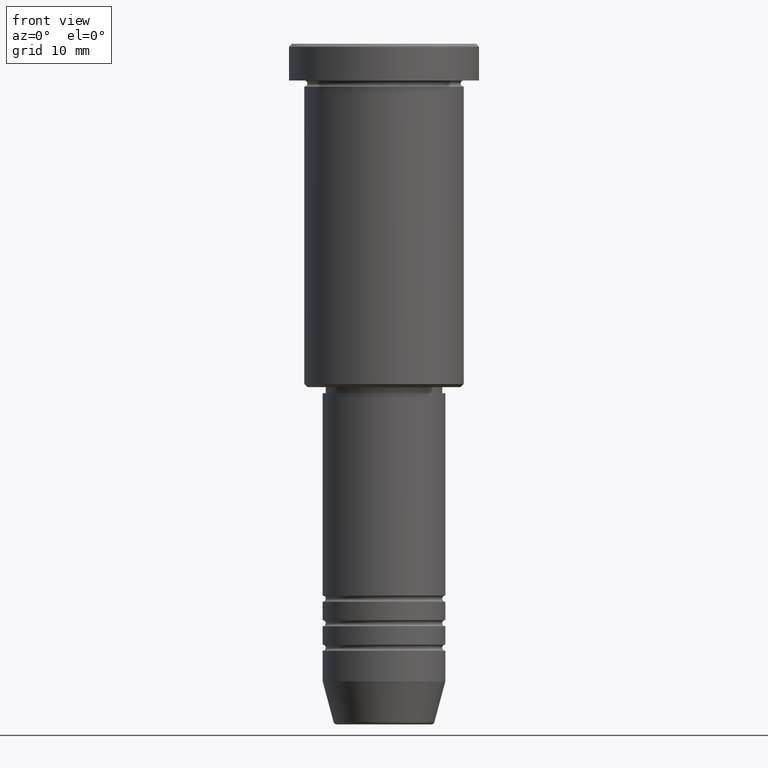
[diagram: clean part render]
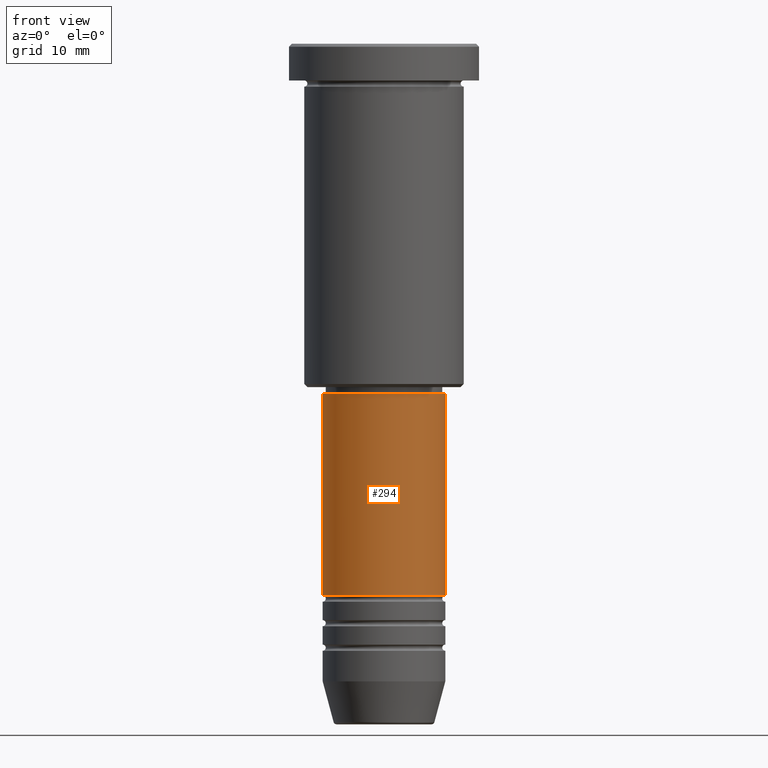
[diagram: same view with one face highlighted and labeled with its STEP entity id]
A machine part, front view. The second image highlights one B-rep face of the part: STEP entity #294.
In plain terms, the highlighted cylindrical surface (partial cylindrical patch) has radius 10 mm, axis along (-0, -0, 1).
Its self-contained STEP definition (entity closure, byte-faithful):
#2 = ORIENTED_EDGE ( 'NONE', *, *, #82, .F. ) ;
#34 = ORIENTED_EDGE ( 'NONE', *, *, #781, .F. ) ;
#56 = VERTEX_POINT ( 'NONE', #1177 ) ;
#82 = EDGE_CURVE ( 'NONE', #56, #852, #632, .T. ) ;
#104 = LINE ( 'NONE', #288, #547 ) ;
#148 = CARTESIAN_POINT ( 'NONE',  ( 0.000000000000000000, 0.000000000000000000, 0.000000000000000000 ) ) ;
#207 = VERTEX_POINT ( 'NONE', #910 ) ;
#224 = DIRECTION ( 'NONE',  ( 1.000000000000000000, 0.000000000000000000, 0.000000000000000000 ) ) ;
#251 = DIRECTION ( 'NONE',  ( -0.000000000000000000, -0.000000000000000000, 1.000000000000000000 ) ) ;
#254 = DIRECTION ( 'NONE',  ( -0.000000000000000000, -0.000000000000000000, 1.000000000000000000 ) ) ;
#258 = CARTESIAN_POINT ( 'NONE',  ( -10.00000000000000178, 1.224646799147353454E-15, -89.99999999999990052 ) ) ;
#269 = CARTESIAN_POINT ( 'NONE',  ( 0.000000000000000000, 0.000000000000000000, -56.99999999999998579 ) ) ;
#284 = CARTESIAN_POINT ( 'NONE',  ( 9.999999999999998224, 0.000000000000000000, -56.99999999999998579 ) ) ;
#288 = CARTESIAN_POINT ( 'NONE',  ( -10.00000000000000000, 1.224646799147353256E-15, 0.000000000000000000 ) ) ;
#294 = ADVANCED_FACE ( 'NONE', ( #1038 ), #1144, .T. ) ;
#318 = EDGE_LOOP ( 'NONE', ( #34, #645, #949, #2 ) ) ;
#343 = EDGE_CURVE ( 'NONE', #207, #852, #1128, .T. ) ;
#419 = CARTESIAN_POINT ( 'NONE',  ( 10.00000000000000000, 0.000000000000000000, 0.000000000000000000 ) ) ;
#507 = VERTEX_POINT ( 'NONE', #258 ) ;
#547 = VECTOR ( 'NONE', #736, 1000.000000000000000 ) ;
#607 = CIRCLE ( 'NONE', #693, 10.00000000000000178 ) ;
#632 = CIRCLE ( 'NONE', #833, 9.999999999999998224 ) ;
#645 = ORIENTED_EDGE ( 'NONE', *, *, #1029, .T. ) ;
#662 = CARTESIAN_POINT ( 'NONE',  ( 0.000000000000000000, 0.000000000000000000, -89.99999999999990052 ) ) ;
#693 = AXIS2_PLACEMENT_3D ( 'NONE', #662, #251, #875 ) ;
#709 = DIRECTION ( 'NONE',  ( 1.000000000000000000, 0.000000000000000000, 0.000000000000000000 ) ) ;
#736 = DIRECTION ( 'NONE',  ( -0.000000000000000000, -0.000000000000000000, 1.000000000000000000 ) ) ;
#770 = DIRECTION ( 'NONE',  ( -0.000000000000000000, -0.000000000000000000, 1.000000000000000000 ) ) ;
#781 = EDGE_CURVE ( 'NONE', #507, #56, #104, .T. ) ;
#803 = VECTOR ( 'NONE', #952, 1000.000000000000000 ) ;
#833 = AXIS2_PLACEMENT_3D ( 'NONE', #269, #254, #709 ) ;
#852 = VERTEX_POINT ( 'NONE', #284 ) ;
#855 = AXIS2_PLACEMENT_3D ( 'NONE', #148, #770, #224 ) ;
#875 = DIRECTION ( 'NONE',  ( 1.000000000000000000, 0.000000000000000000, 0.000000000000000000 ) ) ;
#910 = CARTESIAN_POINT ( 'NONE',  ( 10.00000000000000178, 0.000000000000000000, -89.99999999999990052 ) ) ;
#949 = ORIENTED_EDGE ( 'NONE', *, *, #343, .T. ) ;
#952 = DIRECTION ( 'NONE',  ( -0.000000000000000000, -0.000000000000000000, 1.000000000000000000 ) ) ;
#1029 = EDGE_CURVE ( 'NONE', #507, #207, #607, .T. ) ;
#1038 = FACE_OUTER_BOUND ( 'NONE', #318, .T. ) ;
#1128 = LINE ( 'NONE', #419, #803 ) ;
#1144 = CYLINDRICAL_SURFACE ( 'NONE', #855, 10.00000000000000000 ) ;
#1177 = CARTESIAN_POINT ( 'NONE',  ( -9.999999999999998224, 1.224646799147353256E-15, -56.99999999999998579 ) ) ;